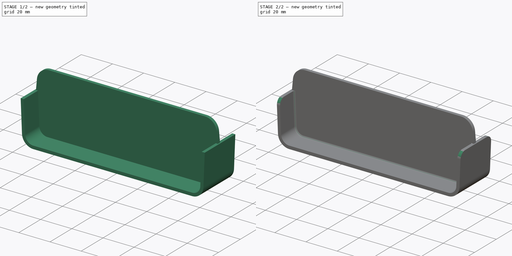
[diagram: build sequence overview — one tinted view per stage of 2, left to right]
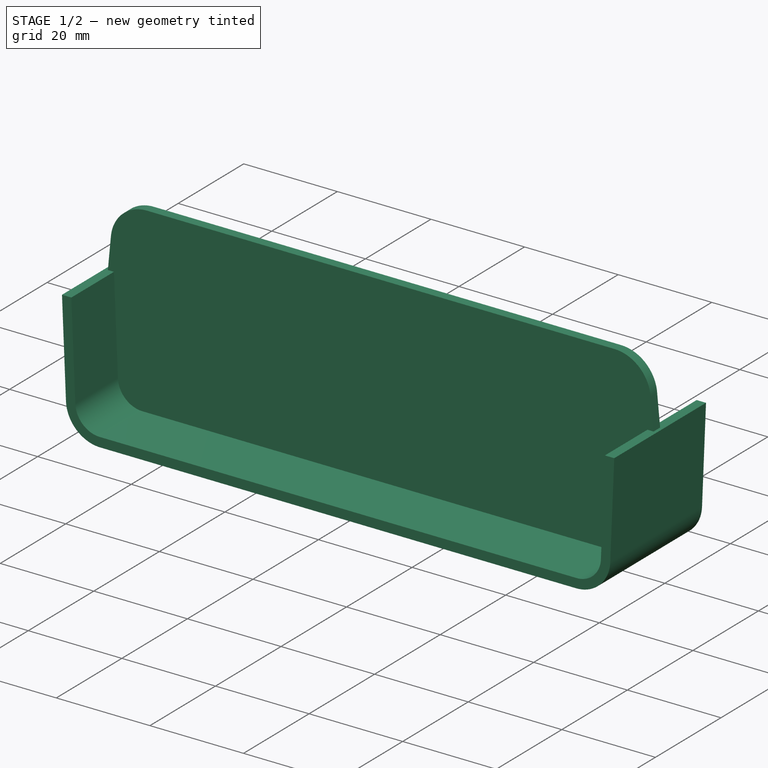
[diagram: stage 1 of 2 — iso view after this stage's code; geometry added in this stage tinted green]
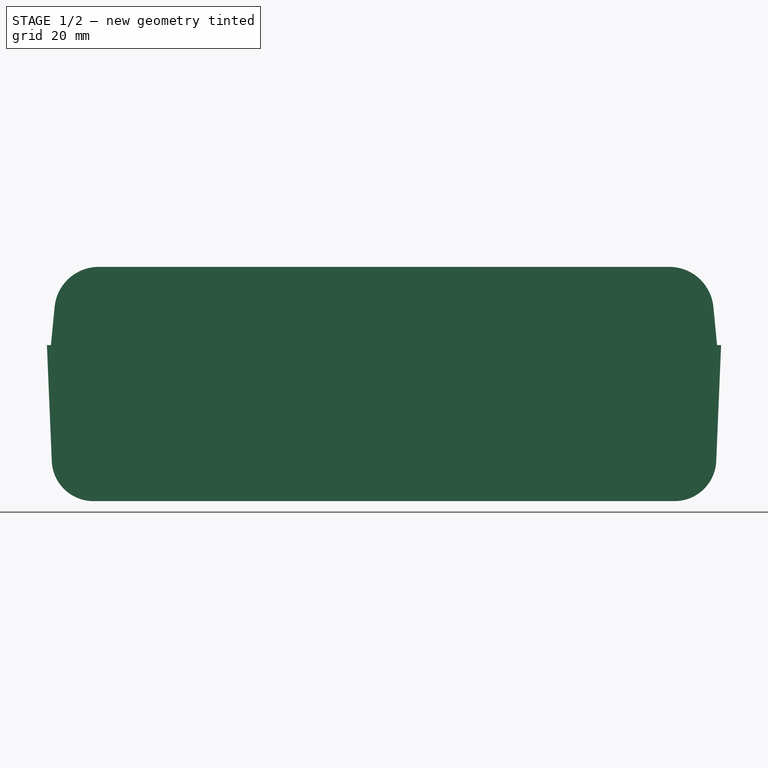
[diagram: stage 1 of 2 — front view after this stage's code; geometry added in this stage tinted green]
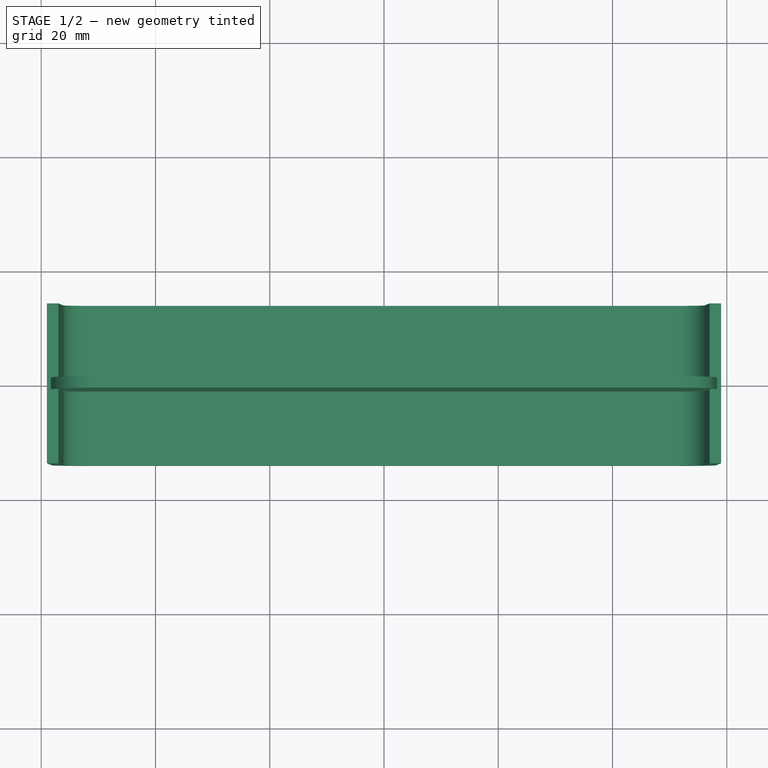
[diagram: stage 1 of 2 — top view after this stage's code; geometry added in this stage tinted green]
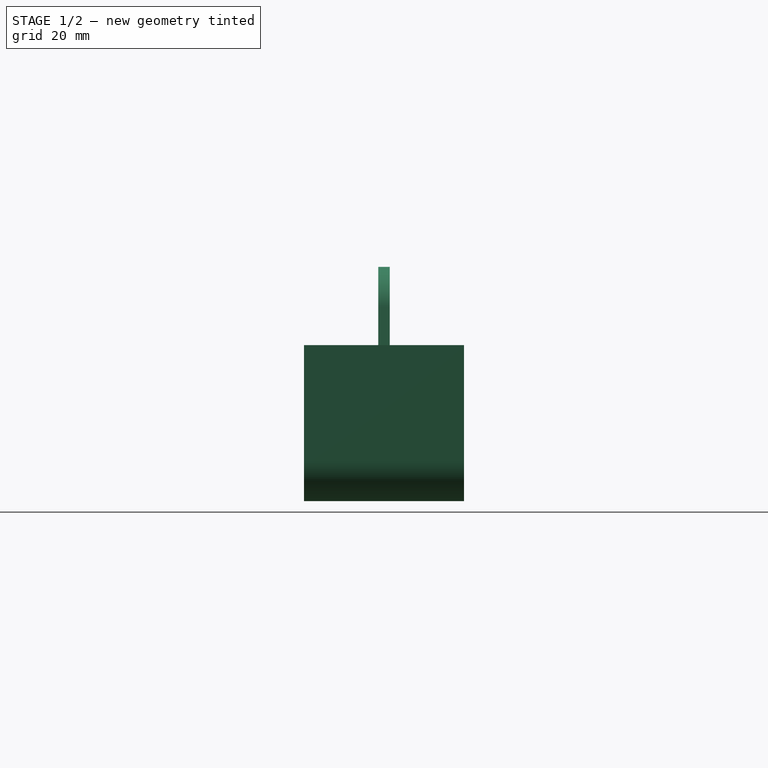
[diagram: stage 1 of 2 — right view after this stage's code; geometry added in this stage tinted green]
FCSTD DOCUMENT  (FreeCAD 1.0R39285 (Git))
Label: AjaaTrenner
License: All rights reserved
LicenseURL: https://en.wikipedia.org/wiki/All_rights_reserved
objects: Sketcher::SketchObject×2, PartDesign::Pad×2, PartDesign::Fillet×2, PartDesign::Body×1
note: 17 computed .brp shape members not serialized (recipe doc carries the construction recipe); baked Part::Feature solids carry a one-line shape summary decoded from their .brp

FEATURE [Sketcher::SketchObject] Sketch
  ArcFitTolerance = 1e-06
  AttachmentSupport = -> [XZ_Plane]
  FullyConstrained = true
  MakeInternals = false
  MapMode = 5
  Placement = pos=(0,0,0) rot=(1,0,0;1.5708rad)
  sketch-geometry (25):
    g0: LineSegment StartX=-50.8508 StartY=0 StartZ=0 EndX=50.8508 EndY=0 EndZ=0
    g1: LineSegment StartX=58.15 StartY=7 StartZ=0 EndX=59 EndY=27.3 EndZ=0
    g2: LineSegment StartX=59 StartY=27.3 StartZ=0 EndX=57 EndY=27.3 EndZ=0
    g3: LineSegment StartX=57 StartY=27.3 StartZ=0 EndX=56.15 EndY=7 EndZ=0
    g4: LineSegment StartX=-56.15 StartY=7 StartZ=0 EndX=-57 EndY=27.3 EndZ=0
    g5: LineSegment StartX=-57 StartY=27.3 StartZ=0 EndX=-59 EndY=27.3 EndZ=0
    g6: LineSegment StartX=-59 StartY=27.3 StartZ=0 EndX=-58.15 EndY=7 EndZ=0
    g7: LineSegment [constr] StartX=0 StartY=2 StartZ=0 EndX=0 EndY=0 EndZ=0
    g8: LineSegment [constr] StartX=-57 StartY=27.3 StartZ=0 EndX=0 EndY=27.3 EndZ=0
    g9: LineSegment [constr] StartX=0 StartY=27.3 StartZ=0 EndX=57 EndY=27.3 EndZ=0
    g10: LineSegment StartX=50.9363 StartY=2 StartZ=0 EndX=0 EndY=2 EndZ=0
    g11: LineSegment StartX=0 StartY=2 StartZ=0 EndX=-50.9363 EndY=2 EndZ=0
    g12: LineSegment [constr] StartX=-58.15 StartY=7 StartZ=0 EndX=-58.15 EndY=0 EndZ=0
    g13: LineSegment [constr] StartX=58.15 StartY=7 StartZ=0 EndX=58.15 EndY=0 EndZ=0
    g14: ArcOfCircle CenterX=-50.8508 CenterY=7.30563 CenterZ=0 NormalX=0 NormalY=0 NormalZ=1 AngleXU=0 Radius=7.30563 StartAngle=3.18344 EndAngle=4.71239
    g15: GeomPoint [constr] X=-57.8569 Y=0 Z=0
    g16: ArcOfCircle CenterX=-50.9363 CenterY=7.21831 CenterZ=0 NormalX=0 NormalY=0 NormalZ=1 AngleXU=0 Radius=5.21831 StartAngle=3.18344 EndAngle=4.71239
    g17: GeomPoint [constr] X=-55.9406 Y=2 Z=0
    g18: ArcOfCircle CenterX=50.9363 CenterY=7.21831 CenterZ=0 NormalX=0 NormalY=0 NormalZ=1 AngleXU=0 Radius=5.21831 StartAngle=4.71239 EndAngle=6.24134
    g19: GeomPoint [constr] X=55.9406 Y=2 Z=0
    g20: ArcOfCircle CenterX=50.8508 CenterY=7.30563 CenterZ=0 NormalX=0 NormalY=0 NormalZ=1 AngleXU=0 Radius=7.30563 StartAngle=4.71239 EndAngle=6.24134
    g21: GeomPoint [constr] X=57.8569 Y=0 Z=0
    g22: LineSegment [constr] StartX=-55.9406 StartY=2 StartZ=0 EndX=57 EndY=27.3 EndZ=0
    g23: LineSegment [constr] StartX=55.9406 StartY=2 StartZ=0 EndX=-57 EndY=27.3 EndZ=0
    g24: LineSegment [constr] StartX=-56.15 StartY=7 StartZ=0 EndX=-58.15 EndY=7 EndZ=0
  constraints (64):
    c: PointOnObject(g15,g-1)
    c: PointOnObject(g21,g-1)
    c: Coincident(g1,g2)
    c: Horizontal(g2)
    c: Coincident(g2,g3)
    c: Coincident(g4,g5)
    c: Horizontal(g5)
    c: Coincident(g5,g6)
    c: Parallel(g4,g6)
    c: Equal(g5,g2)
    c: PointOnObject(g7,g0)
    c: Vertical(g7)
    c: Equal(g7,g2)
    c: Parallel(g3,g1)
    c: Coincident(g4,g8)
    c: PointOnObject(g8,g-2)
    c: Horizontal(g8)
    c: Coincident(g8,g9)
    c: Coincident(g9,g2)
    c: Horizontal(g9)
    c: Equal(g8,g9)
    c: Coincident(g10,g11)
    c: Horizontal(g10)
    c: Horizontal(g11)
    c: PointOnObject(g7,g11)
    c: PointOnObject(g10,g-2)
    c: PointOnObject(g7,g-2)
    c: DistanceX(g5,g1) = 118
    c: DistanceY(g7,g7) = 2
    c: PointOnObject(g12,g-1)
    c: Vertical(g12)
    c: PointOnObject(g13,g-1)
    c: Vertical(g13)
    c: Equal(g13,g12)
    c: DistanceY(g12,g12) = 7
    c: DistanceX(g12,g13) = 116.3
    c: DistanceY(g7,g1) = 27.3
    c: PointOnObject(g15,g6)
    c: Tangent(g6,g14) = -1.5708
    c: Tangent(g0,g14) = -1.5708
    c: PointOnObject(g17,g4)
    c: PointOnObject(g17,g11)
    c: Tangent(g4,g16) = 1.5708
    c: Tangent(g11,g16) = 1.5708
    c: Coincident(g12,g6)
    c: PointOnObject(g19,g3)
    c: PointOnObject(g19,g10)
    c: Tangent(g3,g18) = 1.5708
    c: Tangent(g10,g18) = 1.5708
    c: PointOnObject(g21,g1)
    c: PointOnObject(g21,g0)
    c: Tangent(g1,g20) = -1.5708
    c: Tangent(g0,g20) = -1.5708
    c: Coincident(g1,g13)
    c: PointOnObject(g0,g-1)
    c: Equal(g10,g11)
    c: Coincident(g22,g17)
    c: Coincident(g22,g2)
    c: Coincident(g23,g19)
    c: Coincident(g23,g4)
    c: Equal(g23,g22)
    c: Coincident(g24,g4)
    c: Coincident(g24,g6)
    c: Horizontal(g24)
FEATURE [PartDesign::Pad] Pad
  Direction = (0,-1,2e-16)
  Length = 28
  Length2 = 10
  Midplane = true
  Placement = pos=(0,0,0) rot=(1,0,0;1.5708rad)
  Profile = -> Sketch
  ReferenceAxis = -> Sketch [N_Axis]
  Refine = true
  Suppressed = false
  Type = 0
FEATURE [Sketcher::SketchObject] Sketch001
  ArcFitTolerance = 1e-06
  AttachmentSupport = -> [XZ_Plane]
  ExternalGeometry = -> [Pad]
  FullyConstrained = true
  MakeInternals = false
  MapMode = 5
  Placement = pos=(0,0,0) rot=(1,0,0;1.5708rad)
  sketch-geometry (18):
    g0: LineSegment [constr] StartX=-58.3 StartY=27.3 StartZ=0 EndX=0 EndY=27.3 EndZ=0
    g1: LineSegment [constr] StartX=0 StartY=27.3 StartZ=0 EndX=58.3 EndY=27.3 EndZ=0
    g2: LineSegment StartX=-58.3 StartY=27.3 StartZ=0 EndX=-57.65 EndY=34 EndZ=0
    g3: LineSegment StartX=57.65 StartY=34 StartZ=0 EndX=58.3 EndY=27.3 EndZ=0
    g4: ArcOfCircle CenterX=-49.938 CenterY=33.2518 CenterZ=0 NormalX=0 NormalY=0 NormalZ=1 AngleXU=0 Radius=7.74818 StartAngle=1.5708 EndAngle=3.04488
    g5: GeomPoint [constr] X=-56.9709 Y=41 Z=0
    g6: ArcOfCircle CenterX=49.938 CenterY=33.2518 CenterZ=0 NormalX=0 NormalY=0 NormalZ=1 AngleXU=0 Radius=7.74818 StartAngle=0.0967123 EndAngle=1.5708
    g7: GeomPoint [constr] X=56.9709 Y=41 Z=0
    g8: LineSegment StartX=-49.938 StartY=41 StartZ=0 EndX=0 EndY=41 EndZ=0
    g9: LineSegment StartX=0 StartY=41 StartZ=0 EndX=49.938 EndY=41 EndZ=0
    g10: LineSegment [constr] StartX=-57.65 StartY=34 StartZ=0 EndX=57.65 EndY=34 EndZ=0
    g11: LineSegment StartX=-58.3 StartY=27.3 StartZ=0 EndX=-57.4395 EndY=6.74899 EndZ=0
    g12: LineSegment StartX=58.3 StartY=27.3 StartZ=0 EndX=57.4395 EndY=6.74899 EndZ=0
    g13: LineSegment StartX=51.4447 StartY=1 StartZ=0 EndX=-51.4447 EndY=1 EndZ=0
    g14: ArcOfCircle CenterX=51.4447 CenterY=7 CenterZ=0 NormalX=0 NormalY=0 NormalZ=1 AngleXU=0 Radius=6 StartAngle=4.71239 EndAngle=6.24134
    g15: GeomPoint [constr] X=57.1988 Y=1 Z=0
    g16: ArcOfCircle CenterX=-51.4447 CenterY=7 CenterZ=0 NormalX=0 NormalY=0 NormalZ=1 AngleXU=0 Radius=6 StartAngle=3.18344 EndAngle=4.71239
    g17: GeomPoint [constr] X=-57.1988 Y=1 Z=0
  constraints (45):
    c: Horizontal(g0)
    c: Coincident(g1,g0)
    c: Horizontal(g1)
    c: PointOnObject(g0,g-2)
    c: PointOnObject(g-3,g0)
    c: Equal(g0,g1)
    c: DistanceX(g0,g1) = 116.6
    c: Coincident(g0,g2)
    c: Coincident(g3,g1)
    c: PointOnObject(g5,g2)
    c: Tangent(g2,g4) = 1.5708
    c: PointOnObject(g7,g3)
    c: Coincident(g9,g6) = 1.5708
    c: Tangent(g3,g6) = 1.5708
    c: Equal(g4,g6)
    c: DistanceY(g2,g8) = 7
    c: Coincident(g8,g9)
    c: Horizontal(g8)
    c: Horizontal(g9)
    c: PointOnObject(g5,g8)
    c: PointOnObject(g7,g9)
    c: PointOnObject(g8,g-2)
    c: Equal(g8,g9)
    c: Tangent(g8,g4) = 1.5708
    c: DistanceY(g-1,g8) = 41
    c: Coincident(g10,g2)
    c: Coincident(g10,g3)
    c: Horizontal(g10)
    c: DistanceX(g10,g10) = 115.3
    c: Coincident(g0,g11)
    c: Coincident(g1,g12)
    c: Horizontal(g13)
    c: Parallel(g-3,g11)
    c: Parallel(g12,g-5)
    c: DistanceY(g-1,g15) = 1
    c: PointOnObject(g15,g12)
    c: PointOnObject(g15,g13)
    c: Tangent(g12,g14) = 1.5708
    c: Tangent(g13,g14) = 1.5708
    c: PointOnObject(g17,g11)
    c: PointOnObject(g17,g13)
    c: Tangent(g11,g16) = -1.5708
    c: Tangent(g13,g16) = 1.5708
    c: Equal(g16,g14)
    c: Radius(g16) = 6
FEATURE [PartDesign::Pad] Pad001
  BaseFeature = -> Pad
  Direction = (0,-1,2e-16)
  Length = 2
  Length2 = 10
  Midplane = true
  Placement = pos=(0,0,0) rot=(1,0,0;1.5708rad)
  Profile = -> Sketch001
  ReferenceAxis = -> Sketch001 [N_Axis]
  Refine = true
  Suppressed = false
  Type = 0
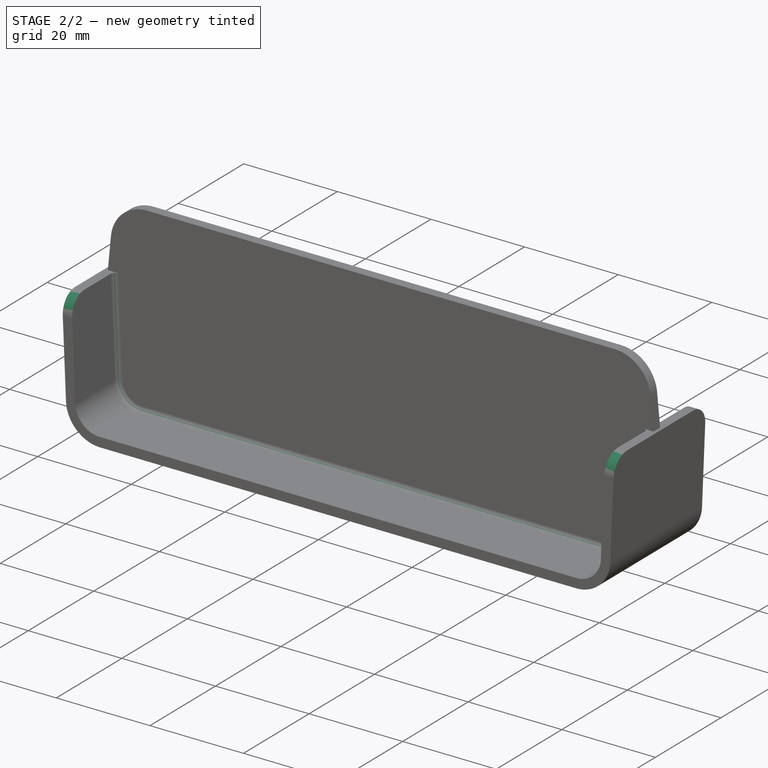
[diagram: stage 2 of 2 — iso view after this stage's code; geometry added in this stage tinted green]
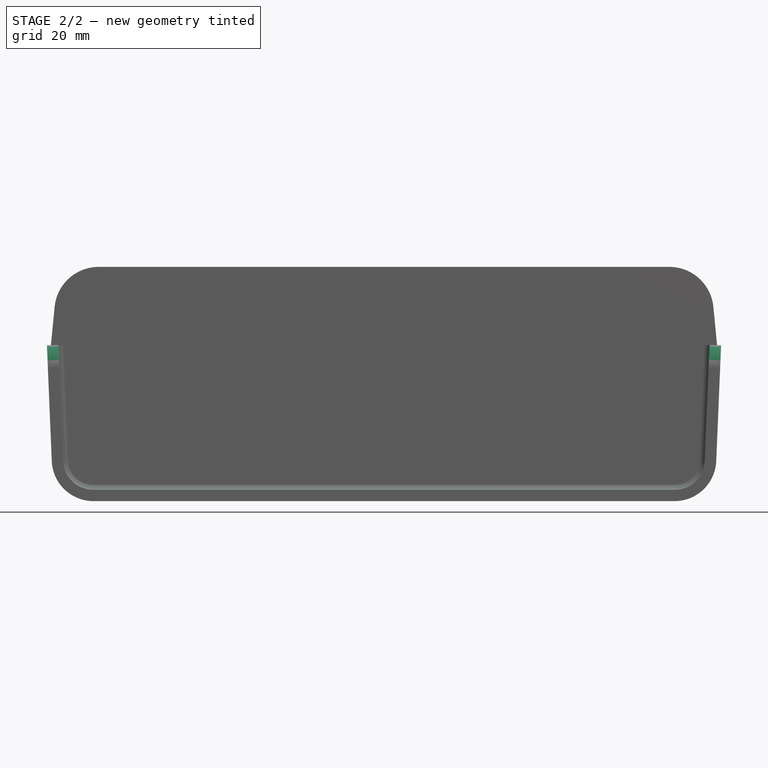
[diagram: stage 2 of 2 — front view after this stage's code; geometry added in this stage tinted green]
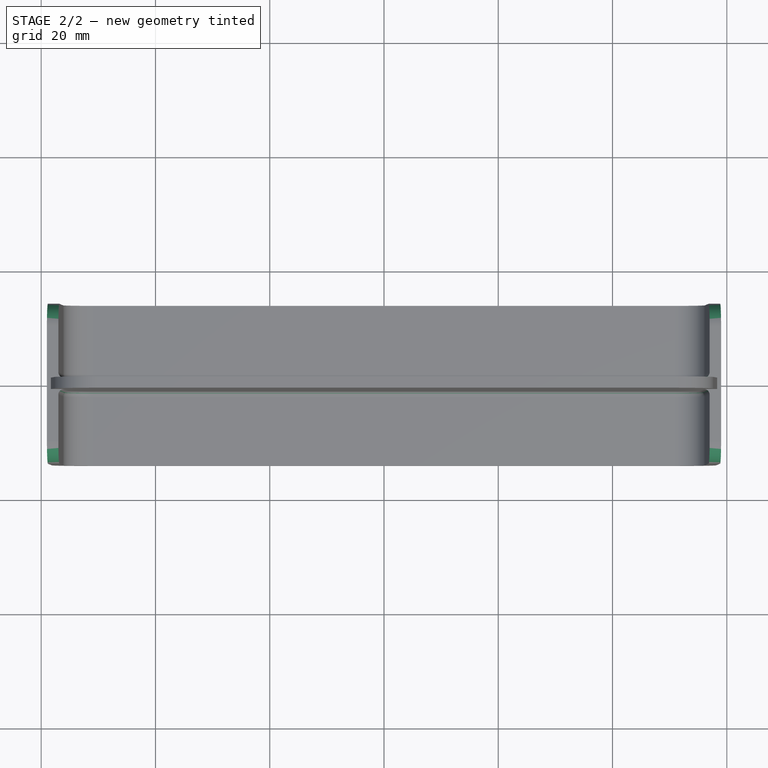
[diagram: stage 2 of 2 — top view after this stage's code; geometry added in this stage tinted green]
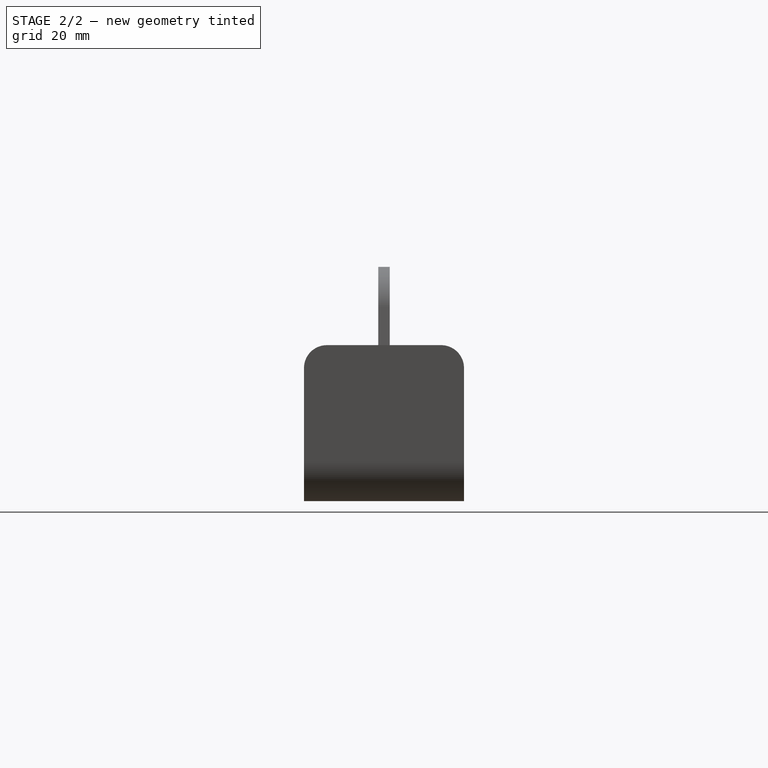
[diagram: stage 2 of 2 — right view after this stage's code; geometry added in this stage tinted green]
FEATURE [PartDesign::Fillet] Fillet
  Base = -> Pad001 [Edge17,Edge47,Edge11,Edge5]
  BaseFeature = -> Pad001
  Placement = pos=(0,0,0) rot=(1,0,0;1.5708rad)
  Radius = 4
  Refine = true
  SupportTransform = false
  Suppressed = false
  UseAllEdges = false
FEATURE [PartDesign::Fillet] Fillet001
  Base = -> Fillet [Edge62,Edge29]
  BaseFeature = -> Fillet
  Placement = pos=(0,0,0) rot=(1,0,0;1.5708rad)
  Radius = 1
  Refine = true
  SupportTransform = false
  Suppressed = false
  UseAllEdges = false
FEATURE [PartDesign::Body] Body
  AllowCompound = false
  Group = -> [Sketch,Pad,Sketch001,Pad001,Fillet,Fillet001]
  Origin = -> Origin
  Tip = -> Fillet001
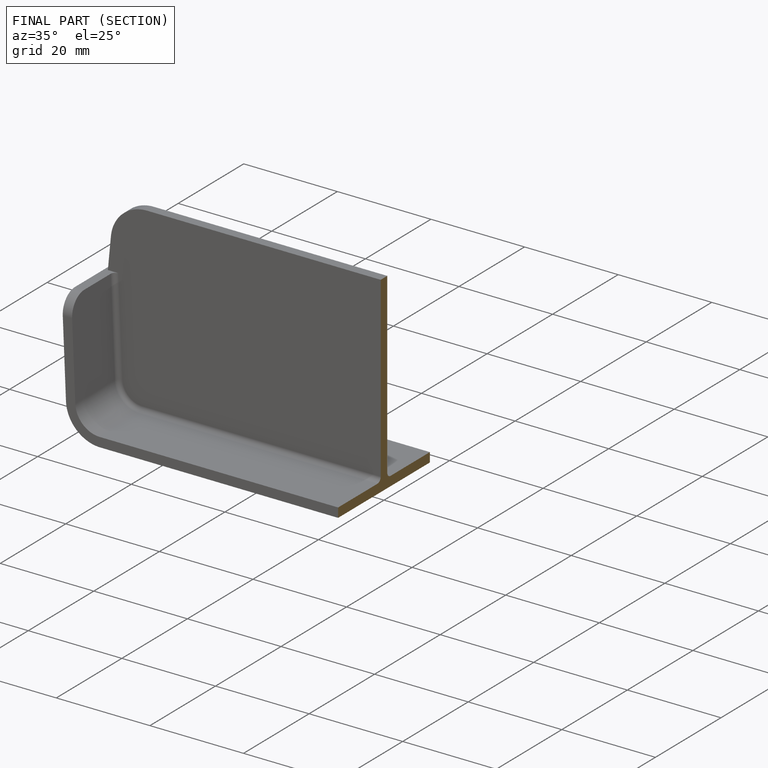
[diagram: finished part — half-section view (interior)]
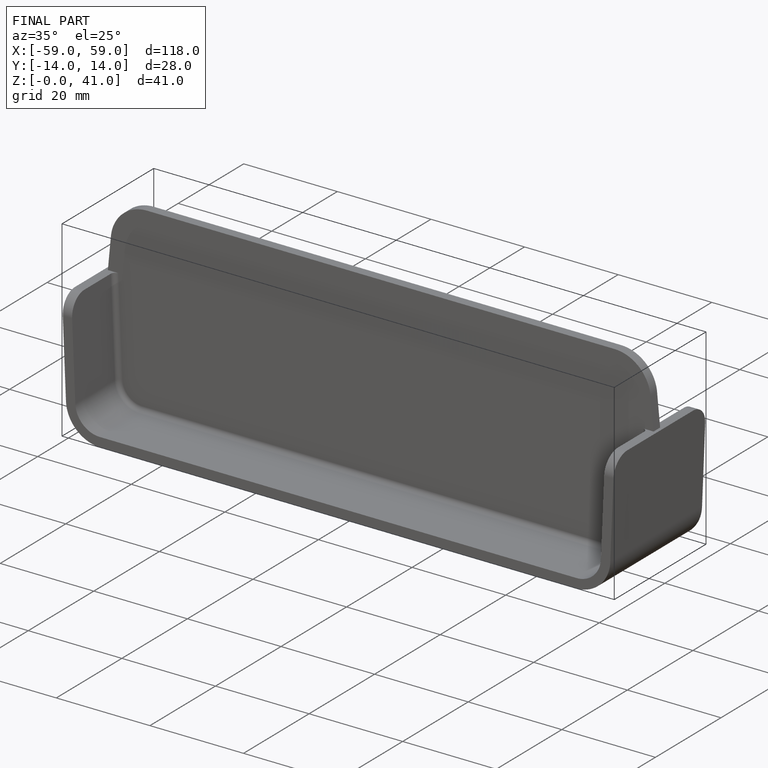
[diagram: finished part — iso view with bounding-box wireframe]
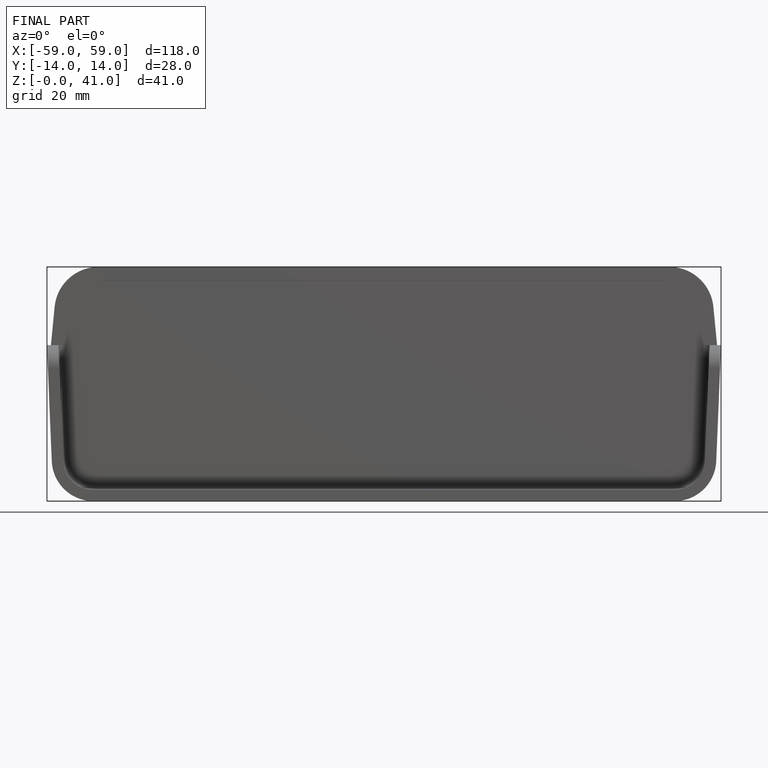
[diagram: finished part — front view with bounding-box wireframe]
